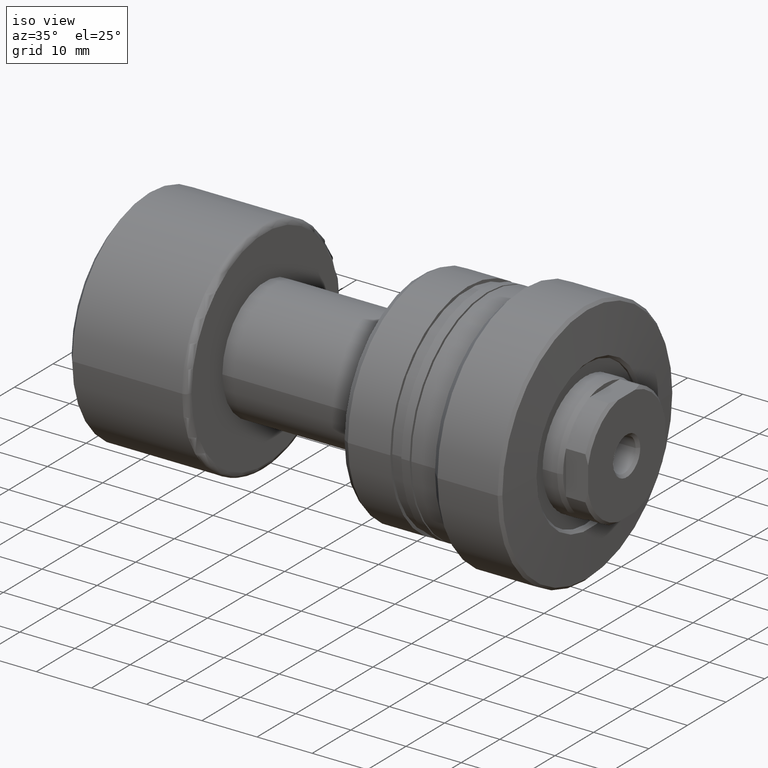
[diagram: clean part render]
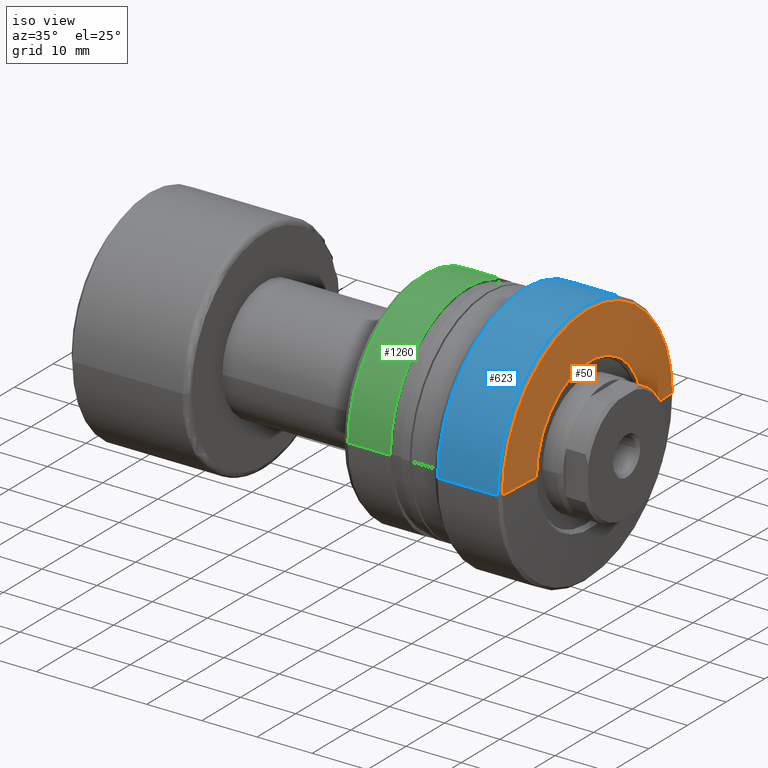
[diagram: same view with three faces highlighted in distinct colors, each labeled with its STEP entity id]
A machine part, iso view with three faces highlighted in distinct colors.
Their STEP definitions:

[orange] entity #50 — the highlighted conical surface has half-angle 87.138 deg.
#50 = ADVANCED_FACE ( 'NONE', ( #806 ), #1489, .T. ) ;
#65 = DIRECTION ( 'NONE',  ( -1.000000000000000000, -3.039592211588219332E-15, 0.000000000000000000 ) ) ;
#84 = CIRCLE ( 'NONE', #1160, 13.74937616943892849 ) ;
#116 = DIRECTION ( 'NONE',  ( -3.035766082959404132E-15, 1.000000000000000000, 0.000000000000000000 ) ) ;
#158 = VECTOR ( 'NONE', #479, 1000.000000000000114 ) ;
#367 = VERTEX_POINT ( 'NONE', #1422 ) ;
#438 = DIRECTION ( 'NONE',  ( -0.04993761694392855749, 0.9987523388778428712, 1.223118854947682994E-16 ) ) ;
#453 = DIRECTION ( 'NONE',  ( 3.035766082959404132E-15, -1.000000000000000000, 0.000000000000000000 ) ) ;
#479 = DIRECTION ( 'NONE',  ( -0.04993761694392248596, -0.9987523388778432043, 0.000000000000000000 ) ) ;
#596 = CARTESIAN_POINT ( 'NONE',  ( -0.6874688084723999948, 8.994929653312370924E-14, 0.000000000000000000 ) ) ;
#614 = CARTESIAN_POINT ( 'NONE',  ( -1.100000000000732392, 8.869536993631697946E-14, 0.000000000000000000 ) ) ;
#636 = CARTESIAN_POINT ( 'NONE',  ( -1.100000000000665556, -21.99999999999997158, 0.000000000000000000 ) ) ;
#806 = FACE_OUTER_BOUND ( 'NONE', #1711, .T. ) ;
#901 = CARTESIAN_POINT ( 'NONE',  ( -1.100000000000799227, 22.00000000000015277, 2.724839128102870063E-15 ) ) ;
#1160 = AXIS2_PLACEMENT_3D ( 'NONE', #596, #1169, #1335 ) ;
#1169 = DIRECTION ( 'NONE',  ( -1.000000000000000000, -3.039592211588226037E-15, 0.000000000000000000 ) ) ;
#1183 = VERTEX_POINT ( 'NONE', #1768 ) ;
#1218 = CARTESIAN_POINT ( 'NONE',  ( -1.100000000000799227, 22.00000000000015277, 2.694222958124184698E-15 ) ) ;
#1270 = EDGE_CURVE ( 'NONE', #1385, #1183, #1533, .T. ) ;
#1335 = DIRECTION ( 'NONE',  ( -3.035903820383676297E-15, 1.000000000000000000, 0.000000000000000000 ) ) ;
#1385 = VERTEX_POINT ( 'NONE', #901 ) ;
#1422 = CARTESIAN_POINT ( 'NONE',  ( -0.6874688084724417392, 13.74937616943901908, 2.189017954870906259E-15 ) ) ;
#1489 = CONICAL_SURFACE ( 'NONE', #2393, 22.00000000000006040, 1.520837931072920535 ) ;
#1502 = ORIENTED_EDGE ( 'NONE', *, *, #2172, .T. ) ;
#1505 = ORIENTED_EDGE ( 'NONE', *, *, #1725, .F. ) ;
#1533 = CIRCLE ( 'NONE', #2280, 22.00000000000006040 ) ;
#1543 = VECTOR ( 'NONE', #438, 1000.000000000000000 ) ;
#1569 = CARTESIAN_POINT ( 'NONE',  ( -1.100000000000732392, 8.869536993631697946E-14, 0.000000000000000000 ) ) ;
#1583 = ORIENTED_EDGE ( 'NONE', *, *, #1270, .T. ) ;
#1711 = EDGE_LOOP ( 'NONE', ( #2343, #1502, #1583, #1505 ) ) ;
#1716 = VERTEX_POINT ( 'NONE', #1980 ) ;
#1725 = EDGE_CURVE ( 'NONE', #1716, #1183, #2161, .T. ) ;
#1768 = CARTESIAN_POINT ( 'NONE',  ( -1.100000000000665556, -21.99999999999997158, 0.000000000000000000 ) ) ;
#1971 = EDGE_CURVE ( 'NONE', #1716, #367, #84, .T. ) ;
#1980 = CARTESIAN_POINT ( 'NONE',  ( -0.6874688084723582504, -13.74937616943883789, 0.000000000000000000 ) ) ;
#2124 = LINE ( 'NONE', #1218, #1543 ) ;
#2161 = LINE ( 'NONE', #636, #158 ) ;
#2172 = EDGE_CURVE ( 'NONE', #367, #1385, #2124, .T. ) ;
#2280 = AXIS2_PLACEMENT_3D ( 'NONE', #1569, #2320, #116 ) ;
#2320 = DIRECTION ( 'NONE',  ( 1.000000000000000000, 3.039592211588219332E-15, -0.000000000000000000 ) ) ;
#2343 = ORIENTED_EDGE ( 'NONE', *, *, #1971, .T. ) ;
#2393 = AXIS2_PLACEMENT_3D ( 'NONE', #614, #65, #453 ) ;

[blue] entity #623 — the highlighted cylindrical surface (partial cylindrical patch) has radius 22.5 mm, axis along (1, 0, 0).
#94 = CARTESIAN_POINT ( 'NONE',  ( -12.50000000000068567, -22.50000000000000355, 2.755455298081551483E-15 ) ) ;
#100 = CARTESIAN_POINT ( 'NONE',  ( -1.600000000000695755, -22.49999999999999645, 2.755455298081553850E-15 ) ) ;
#115 = CARTESIAN_POINT ( 'NONE',  ( -30.28002276692732408, 0.000000000000000000, 0.000000000000000000 ) ) ;
#265 = EDGE_CURVE ( 'NONE', #2093, #702, #1726, .T. ) ;
#315 = CYLINDRICAL_SURFACE ( 'NONE', #396, 22.50000000000006750 ) ;
#327 = VERTEX_POINT ( 'NONE', #629 ) ;
#396 = AXIS2_PLACEMENT_3D ( 'NONE', #115, #1325, #2073 ) ;
#507 = EDGE_CURVE ( 'NONE', #702, #1311, #2029, .T. ) ;
#511 = ORIENTED_EDGE ( 'NONE', *, *, #1840, .F. ) ;
#547 = CARTESIAN_POINT ( 'NONE',  ( -30.28002276692739159, 22.50000000000006750, 0.000000000000000000 ) ) ;
#623 = ADVANCED_FACE ( 'NONE', ( #713 ), #315, .T. ) ;
#629 = CARTESIAN_POINT ( 'NONE',  ( -1.600000000000832312, 22.50000000000017408, 0.000000000000000000 ) ) ;
#702 = VERTEX_POINT ( 'NONE', #94 ) ;
#713 = FACE_OUTER_BOUND ( 'NONE', #1039, .T. ) ;
#722 = AXIS2_PLACEMENT_3D ( 'NONE', #891, #2374, #1617 ) ;
#802 = AXIS2_PLACEMENT_3D ( 'NONE', #960, #2287, #1702 ) ;
#891 = CARTESIAN_POINT ( 'NONE',  ( -1.600000000000763922, 8.717557383052277888E-14, 0.000000000000000000 ) ) ;
#899 = DIRECTION ( 'NONE',  ( 1.000000000000000000, 3.039592211588219332E-15, -0.000000000000000000 ) ) ;
#960 = CARTESIAN_POINT ( 'NONE',  ( -12.50000000000075318, 5.404401872421122820E-14, 0.000000000000000000 ) ) ;
#1039 = EDGE_LOOP ( 'NONE', ( #2314, #1165, #2360, #511 ) ) ;
#1124 = CARTESIAN_POINT ( 'NONE',  ( -30.28002276692725303, -22.50000000000006750, 2.755455298081553061E-15 ) ) ;
#1144 = EDGE_CURVE ( 'NONE', #327, #1311, #1732, .T. ) ;
#1165 = ORIENTED_EDGE ( 'NONE', *, *, #507, .T. ) ;
#1311 = VERTEX_POINT ( 'NONE', #100 ) ;
#1325 = DIRECTION ( 'NONE',  ( 1.000000000000000000, 3.039592211588219332E-15, -0.000000000000000000 ) ) ;
#1476 = LINE ( 'NONE', #547, #2402 ) ;
#1617 = DIRECTION ( 'NONE',  ( -3.035766082959400977E-15, 1.000000000000000000, 0.000000000000000000 ) ) ;
#1702 = DIRECTION ( 'NONE',  ( -3.006854025026458399E-15, 1.000000000000000000, 0.000000000000000000 ) ) ;
#1726 = CIRCLE ( 'NONE', #802, 22.50000000000005329 ) ;
#1732 = CIRCLE ( 'NONE', #722, 22.50000000000008527 ) ;
#1840 = EDGE_CURVE ( 'NONE', #2093, #327, #1476, .T. ) ;
#1864 = DIRECTION ( 'NONE',  ( 1.000000000000000000, 3.039592211588219332E-15, -0.000000000000000000 ) ) ;
#1992 = VECTOR ( 'NONE', #1864, 1000.000000000000000 ) ;
#2029 = LINE ( 'NONE', #1124, #1992 ) ;
#2073 = DIRECTION ( 'NONE',  ( -3.083952846180981011E-15, 1.000000000000000000, 0.000000000000000000 ) ) ;
#2093 = VERTEX_POINT ( 'NONE', #2107 ) ;
#2107 = CARTESIAN_POINT ( 'NONE',  ( -12.50000000000082068, 22.50000000000010658, 0.000000000000000000 ) ) ;
#2287 = DIRECTION ( 'NONE',  ( 1.000000000000000000, 3.039592211588219332E-15, -0.000000000000000000 ) ) ;
#2314 = ORIENTED_EDGE ( 'NONE', *, *, #265, .T. ) ;
#2360 = ORIENTED_EDGE ( 'NONE', *, *, #1144, .F. ) ;
#2374 = DIRECTION ( 'NONE',  ( 1.000000000000000000, 3.039592211588219332E-15, -0.000000000000000000 ) ) ;
#2402 = VECTOR ( 'NONE', #899, 1000.000000000000000 ) ;

[green] entity #1260 — the highlighted cylindrical surface (partial cylindrical patch) has radius 20 mm, axis along (1, 0, 0).
#23 = LINE ( 'NONE', #1750, #2123 ) ;
#89 = ORIENTED_EDGE ( 'NONE', *, *, #854, .F. ) ;
#325 = AXIS2_PLACEMENT_3D ( 'NONE', #2273, #2130, #1006 ) ;
#351 = CARTESIAN_POINT ( 'NONE',  ( -22.80878161770250045, 20.00000000000005329, 0.000000000000000000 ) ) ;
#431 = CARTESIAN_POINT ( 'NONE',  ( -22.80878161770237611, -20.00000000000000711, 2.449293598294709668E-15 ) ) ;
#581 = VERTEX_POINT ( 'NONE', #431 ) ;
#603 = AXIS2_PLACEMENT_3D ( 'NONE', #1592, #1964, #648 ) ;
#648 = DIRECTION ( 'NONE',  ( -3.122502256758250009E-15, 1.000000000000000000, 0.000000000000000000 ) ) ;
#736 = VECTOR ( 'NONE', #1049, 1000.000000000000000 ) ;
#772 = CARTESIAN_POINT ( 'NONE',  ( -22.80878161770243651, 2.270952640808137383E-14, 0.000000000000000000 ) ) ;
#854 = EDGE_CURVE ( 'NONE', #1442, #581, #2354, .T. ) ;
#933 = DIRECTION ( 'NONE',  ( 1.000000000000000000, 3.039592211588219332E-15, -0.000000000000000000 ) ) ;
#986 = ORIENTED_EDGE ( 'NONE', *, *, #2149, .T. ) ;
#1006 = DIRECTION ( 'NONE',  ( -3.122502256758252376E-15, 1.000000000000000000, 0.000000000000000000 ) ) ;
#1033 = EDGE_CURVE ( 'NONE', #1600, #1442, #23, .T. ) ;
#1049 = DIRECTION ( 'NONE',  ( 1.000000000000000000, 3.039592211588219332E-15, -0.000000000000000000 ) ) ;
#1052 = EDGE_CURVE ( 'NONE', #1600, #1308, #1415, .T. ) ;
#1222 = CYLINDRICAL_SURFACE ( 'NONE', #603, 20.00000000000001776 ) ;
#1260 = ADVANCED_FACE ( 'NONE', ( #1414 ), #1222, .T. ) ;
#1308 = VERTEX_POINT ( 'NONE', #1976 ) ;
#1321 = DIRECTION ( 'NONE',  ( -3.122502256758248431E-15, 1.000000000000000000, 0.000000000000000000 ) ) ;
#1408 = CARTESIAN_POINT ( 'NONE',  ( -30.28002276692726014, -20.00000000000001776, 2.449293598294708880E-15 ) ) ;
#1414 = FACE_OUTER_BOUND ( 'NONE', #1844, .T. ) ;
#1415 = CIRCLE ( 'NONE', #325, 20.00000000000000355 ) ;
#1442 = VERTEX_POINT ( 'NONE', #351 ) ;
#1592 = CARTESIAN_POINT ( 'NONE',  ( -30.28002276692732408, 0.000000000000000000, 0.000000000000000000 ) ) ;
#1600 = VERTEX_POINT ( 'NONE', #1712 ) ;
#1712 = CARTESIAN_POINT ( 'NONE',  ( -30.50000000000030553, 20.00000000000000355, 0.000000000000000000 ) ) ;
#1723 = DIRECTION ( 'NONE',  ( 1.000000000000000000, 3.039592211588219332E-15, -0.000000000000000000 ) ) ;
#1750 = CARTESIAN_POINT ( 'NONE',  ( -30.28002276692738803, 20.00000000000001776, 0.000000000000000000 ) ) ;
#1844 = EDGE_LOOP ( 'NONE', ( #2065, #986, #89, #2119 ) ) ;
#1964 = DIRECTION ( 'NONE',  ( 1.000000000000000000, 3.039592211588219332E-15, -0.000000000000000000 ) ) ;
#1976 = CARTESIAN_POINT ( 'NONE',  ( -30.50000000000018119, -20.00000000000000355, 2.449293598294706513E-15 ) ) ;
#2065 = ORIENTED_EDGE ( 'NONE', *, *, #1052, .T. ) ;
#2119 = ORIENTED_EDGE ( 'NONE', *, *, #1033, .F. ) ;
#2123 = VECTOR ( 'NONE', #1723, 1000.000000000000000 ) ;
#2130 = DIRECTION ( 'NONE',  ( 1.000000000000000000, 3.039592211588219332E-15, -0.000000000000000000 ) ) ;
#2134 = LINE ( 'NONE', #1408, #736 ) ;
#2149 = EDGE_CURVE ( 'NONE', #1308, #581, #2134, .T. ) ;
#2273 = CARTESIAN_POINT ( 'NONE',  ( -30.50000000000024158, -6.686410843751637443E-16, 0.000000000000000000 ) ) ;
#2311 = AXIS2_PLACEMENT_3D ( 'NONE', #772, #933, #1321 ) ;
#2354 = CIRCLE ( 'NONE', #2311, 20.00000000000002842 ) ;